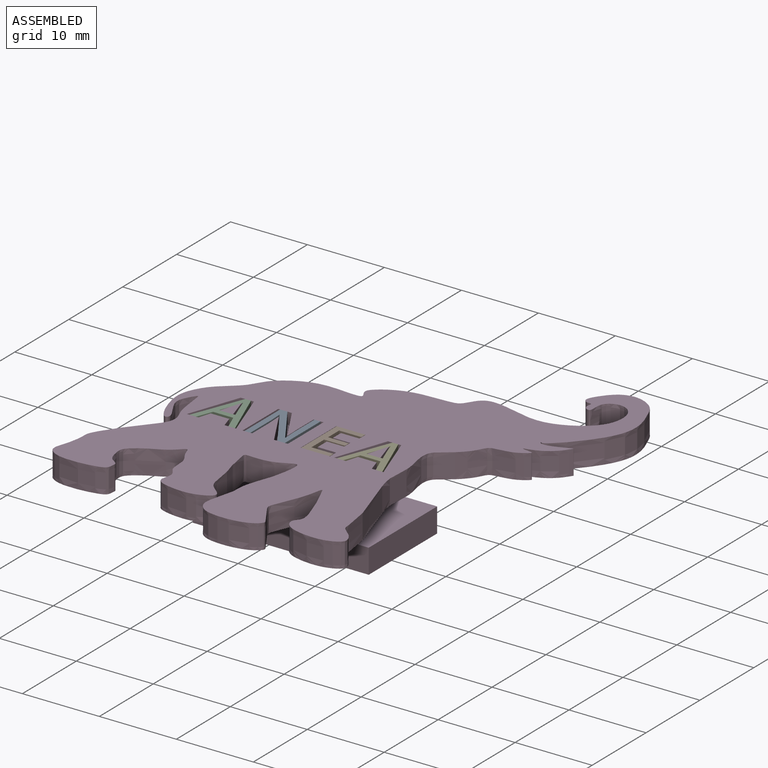
[diagram: assembled view]
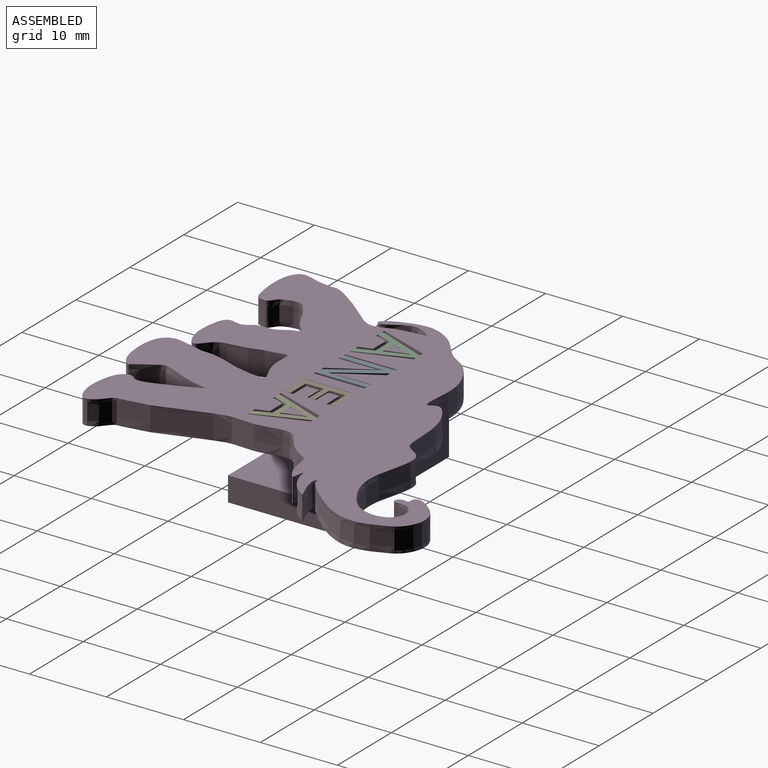
[diagram: assembled view, second angle]
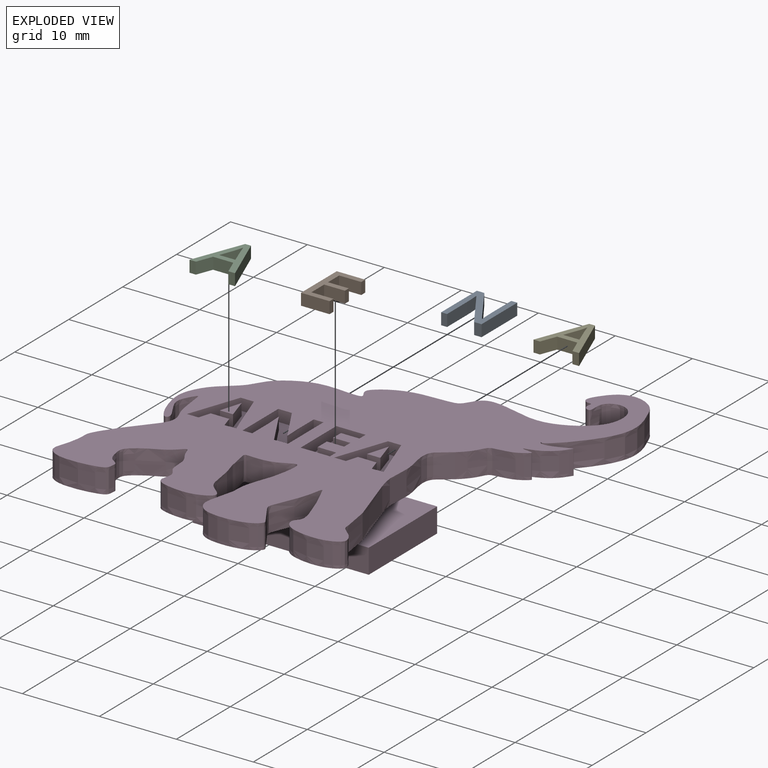
[diagram: exploded view]
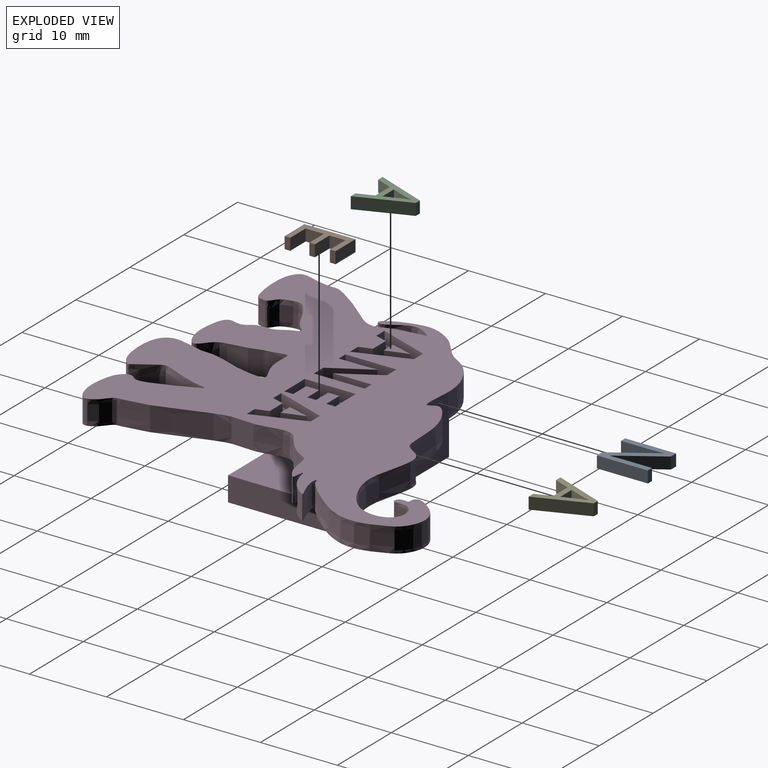
[diagram: exploded view, second angle]
ASSEMBLY  parts=5 mates=4
PART A: 20 faces, bbox 5.2x6.6x1.5 mm
  f0: plane 1.52x0.97mm, normal (0,-1,0), area 1.5mm2, adj f1,f17,f18,f19
  f1: plane 6.62x1.52mm, normal (1,0,0), area 10.1mm2, adj f0,f2,f18,f19
  f2: plane 1.52x0.78mm, normal (0,1,0), area 1.2mm2, adj f1,f3,f18,f19
  f3: plane 3.74x1.52mm, normal (-1,0,0), area 5.7mm2, adj f2,f4,f18,f19
  f4: extruded ~1.52x0.97mm, area 1.5mm2, adj f3,f5,f18,f19
  f5: extruded ~1.52x0.78mm, area 1.2mm2, adj f4,f6,f18,f19
  f6: plane 1.52x0.04mm, normal (0,1,0), area 0.1mm2, adj f5,f7,f18,f19
  f7: plane 1.8x1.52mm, normal (0.84,0.54,0), area 3.3mm2, adj f6,f8,f18,f19
  f8: plane 3.36x2.17mm, normal (0.84,0.54,0), area 6.1mm2, adj f7,f9,f18,f19
  f9: plane 1.52x0.32mm, normal (0.85,0.53,0), area 0.6mm2, adj f8,f10,f18,f19
  f10: plane 1.52x0.97mm, normal (0,1,0), area 1.5mm2, adj f9,f11,f18,f19
  f11: plane 6.62x1.52mm, normal (-1,0,0), area 10.1mm2, adj f10,f12,f18,f19
  f12: plane 1.52x0.77mm, normal (0,-1,0), area 1.2mm2, adj f11,f13,f18,f19
  f13: plane 3.7x1.52mm, normal (1,0,0), area 5.6mm2, adj f12,f14,f18,f19
  f14: extruded ~1.52x1.43mm, area 2.2mm2, adj f13,f15,f18,f19
  f15: plane 1.52x0.37mm, normal (1,0.06,0), area 0.6mm2, adj f14,f16,f18,f19
  f16: plane 1.52x0.04mm, normal (0,-1,0), area 0.1mm2, adj f15,f17,f18,f19
  f17: plane 5.5x3.55mm, normal (-0.84,-0.54,0), area 10mm2, adj f0,f16,f18,f19
  f18: plane 6.62x5.25mm, normal (0,0,1), area 15.6mm2, adj f0,f1,f2,f3,f4,f5,f6,f7
  f19: plane 6.62x5.25mm, normal (0,0,-1), area 15.6mm2, adj f0,f1,f2,f3,f4,f5,f6,f7
PART B: 14 faces, bbox 3.7x6.6x1.5 mm
  f0: plane 3.7x1.52mm, normal (0,-1,0), area 5.6mm2, adj f1,f11,f12,f13
  f1: plane 1.52x0.73mm, normal (1,0,0), area 1.1mm2, adj f0,f2,f12,f13
  f2: plane 2.87x1.52mm, normal (0,1,0), area 4.4mm2, adj f1,f3,f12,f13
  f3: plane 2.37x1.52mm, normal (1,0,0), area 3.6mm2, adj f2,f4,f12,f13
  f4: plane 2.7x1.52mm, normal (0,-1,0), area 4.1mm2, adj f3,f5,f12,f13
  f5: plane 1.52x0.72mm, normal (1,0,0), area 1.1mm2, adj f4,f6,f12,f13
  f6: plane 2.7x1.52mm, normal (0,1,0), area 4.1mm2, adj f5,f7,f12,f13
  f7: plane 2.07x1.52mm, normal (1,0,0), area 3.1mm2, adj f6,f8,f12,f13
  f8: plane 2.87x1.52mm, normal (0,-1,0), area 4.4mm2, adj f7,f9,f12,f13
  f9: plane 1.52x0.73mm, normal (1,0,0), area 1.1mm2, adj f8,f10,f12,f13
  f10: plane 3.7x1.52mm, normal (0,1,0), area 5.6mm2, adj f9,f11,f12,f13
  f11: plane 6.62x1.52mm, normal (-1,0,0), area 10.1mm2, adj f0,f10,f12,f13
  f12: plane 6.62x3.7mm, normal (0,0,1), area 11.7mm2, adj f0,f1,f2,f3,f4,f5,f6,f7
  f13: plane 6.62x3.7mm, normal (0,0,-1), area 11.7mm2, adj f0,f1,f2,f3,f4,f5,f6,f7
PART C: 15 faces, bbox 5.9x6.6x1.5 mm
  f0: plane 2.01x1.52mm, normal (-0.94,-0.35,0), area 3.3mm2, adj f1,f12,f13,f14
  f1: plane 2.1x1.52mm, normal (0,1,0), area 3.2mm2, adj f0,f2,f13,f14
  f2: plane 2.01x1.52mm, normal (0.94,-0.35,0), area 3.3mm2, adj f1,f3,f13,f14
  f3: extruded ~1.52x0.99mm, area 1.6mm2, adj f2,f12,f13,f14
  f4: plane 2.05x1.52mm, normal (-0.93,-0.36,0), area 3.4mm2, adj f5,f11,f13,f14
  f5: plane 1.52x0.86mm, normal (0,-1,0), area 1.3mm2, adj f4,f6,f13,f14
  f6: plane 6.65x2.58mm, normal (0.93,0.36,0), area 10.9mm2, adj f5,f7,f13,f14
  f7: plane 1.52x0.75mm, normal (0,1,0), area 1.1mm2, adj f6,f8,f13,f14
  f8: plane 6.65x2.59mm, normal (-0.93,0.36,0), area 10.9mm2, adj f7,f9,f13,f14
  f9: plane 1.52x0.84mm, normal (0,-1,0), area 1.3mm2, adj f8,f10,f13,f14
  f10: plane 2.05x1.52mm, normal (0.93,-0.36,0), area 3.4mm2, adj f9,f11,f13,f14
  f11: plane 2.63x1.52mm, normal (0,-1,0), area 4mm2, adj f4,f10,f13,f14
  f12: plane 1.52x0.99mm, normal (-0.95,-0.3,0), area 1.6mm2, adj f0,f3,f13,f14
  f13: plane 6.65x5.92mm, normal (0,0,1), area 12.2mm2, adj f0,f1,f2,f3,f4,f5,f6,f7
  f14: plane 6.65x5.92mm, normal (0,0,-1), area 12.2mm2, adj f0,f1,f2,f3,f4,f5,f6,f7
PART D: 66 faces, bbox 48.2x50.4x11.1 mm
  f0: plane 22.86x7.94mm, normal (0,1,0), area 87.7mm2, adj f1,f4,f62,f63,f64,f65
  f1: plane 12.7x3.18mm, normal (1,0,0), area 40.3mm2, adj f0,f61,f63,f64
  f2: plane 50.43x48.2mm, normal (0,0,1), area 971.8mm2, adj f3,f5,f6,f7,f8,f9,f10,f11
  f3: extruded ~49.27x47.53mm, area 913.8mm2, adj f2,f4
  f4: plane 50.43x48.2mm, normal (0,0,-1), area 1018.6mm2, adj f0,f3,f61,f62,f65
  f5: plane 1.78x1.52mm, normal (0,1,0), area 2.7mm2, adj f2,f6,f18,f19
  f6: plane 6.62x1.52mm, normal (-1,0,0), area 10.1mm2, adj f2,f5,f7,f19
  f7: plane 1.52x1.26mm, normal (0,-1,0), area 1.9mm2, adj f2,f6,f8,f19
  f8: plane 3.13x1.52mm, normal (1,0,0), area 4.8mm2, adj f2,f7,f9,f19
  f9: extruded ~1.82x1.52mm, area 2.8mm2, adj f2,f8,f10,f19
  f10: plane 1.52x0.03mm, normal (0,-1,0), area 0mm2, adj f2,f9,f11,f19
  f11: plane 4.96x2.88mm, normal (-0.87,-0.5,0), area 8.7mm2, adj f2,f10,f12,f19
  f12: plane 1.77x1.52mm, normal (0,-1,0), area 2.7mm2, adj f2,f11,f13,f19
  f13: plane 6.62x1.52mm, normal (1,0,0), area 10.1mm2, adj f2,f12,f14,f19
  f14: plane 1.52x1.26mm, normal (0,1,0), area 1.9mm2, adj f2,f13,f15,f19
  f15: plane 3.12x1.52mm, normal (-1,0,0), area 4.7mm2, adj f2,f14,f16,f19
  f16: extruded ~1.89x1.52mm, area 2.9mm2, adj f2,f15,f17,f19
  f17: plane 1.52x0.04mm, normal (0,1,0), area 0.1mm2, adj f2,f16,f18,f19
  f18: plane 5.01x2.88mm, normal (0.87,0.5,0), area 8.8mm2, adj f2,f5,f17,f19
  f19: plane 6.62x5.87mm, normal (0,0,1), area 24.8mm2, adj f5,f6,f7,f8,f9,f10,f11,f12
  f20: plane 3.81x1.52mm, normal (0,1,0), area 5.8mm2, adj f2,f21,f31,f32
  f21: plane 1.52x1.16mm, normal (-1,0,0), area 1.8mm2, adj f2,f20,f22,f32
  f22: plane 2.41x1.52mm, normal (0,-1,0), area 3.7mm2, adj f2,f21,f23,f32
  f23: plane 1.71x1.52mm, normal (-1,0,0), area 2.6mm2, adj f2,f22,f24,f32
  f24: plane 2.24x1.52mm, normal (0,1,0), area 3.4mm2, adj f2,f23,f25,f32
  f25: plane 1.52x1.15mm, normal (-1,0,0), area 1.8mm2, adj f2,f24,f26,f32
  f26: plane 2.24x1.52mm, normal (0,-1,0), area 3.4mm2, adj f2,f25,f27,f32
  f27: plane 1.52x1.45mm, normal (-1,0,0), area 2.2mm2, adj f2,f26,f28,f32
  f28: plane 2.41x1.52mm, normal (0,1,0), area 3.7mm2, adj f2,f27,f29,f32
  f29: plane 1.52x1.15mm, normal (-1,0,0), area 1.8mm2, adj f2,f28,f30,f32
  f30: plane 3.81x1.52mm, normal (0,-1,0), area 5.8mm2, adj f2,f29,f31,f32
  f31: plane 6.62x1.52mm, normal (1,0,0), area 10.1mm2, adj f2,f20,f30,f32
  f32: plane 6.62x3.81mm, normal (0,0,1), area 17.4mm2, adj f20,f21,f22,f23,f24,f25,f26,f27
  f33: extruded ~2.42x1.52mm, area 3.9mm2, adj f34,f44,f45,f59
  f34: plane 1.72x1.52mm, normal (0,-1,0), area 2.6mm2, adj f33,f35,f45,f59
  f35: extruded ~2.87x1.52mm, area 4.6mm2, adj f34,f44,f45,f59
  f36: plane 1.58x1.52mm, normal (0.96,0.29,0), area 2.5mm2, adj f2,f37,f43,f45
  f37: plane 1.52x1.51mm, normal (0,1,0), area 2.3mm2, adj f2,f36,f38,f45
  f38: plane 6.65x2.35mm, normal (-0.94,-0.33,0), area 10.7mm2, adj f2,f37,f39,f45
  f39: plane 1.72x1.52mm, normal (0,-1,0), area 2.6mm2, adj f2,f38,f40,f45
  f40: plane 6.65x2.34mm, normal (0.94,-0.33,0), area 10.7mm2, adj f2,f39,f41,f45
  f41: plane 1.52x1.51mm, normal (0,1,0), area 2.3mm2, adj f2,f40,f42,f45
  f42: plane 1.58x1.52mm, normal (-0.96,0.29,0), area 2.5mm2, adj f2,f41,f43,f45
  f43: plane 2.41x1.52mm, normal (0,1,0), area 3.7mm2, adj f2,f36,f42,f45
  f44: extruded ~1.52x0.44mm, area 0.7mm2, adj f33,f35,f45,f59
  f45: plane 6.65x6.4mm, normal (0,0,1), area 20mm2, adj f33,f34,f35,f36,f37,f38,f39,f40
  f46: extruded ~2.42x1.52mm, area 3.9mm2, adj f47,f57,f58,f60
  f47: plane 1.72x1.52mm, normal (0,-1,0), area 2.6mm2, adj f46,f48,f58,f60
  f48: extruded ~2.87x1.52mm, area 4.6mm2, adj f47,f57,f58,f60
  f49: plane 1.58x1.52mm, normal (0.96,0.29,0), area 2.5mm2, adj f2,f50,f56,f58
  f50: plane 1.52x1.51mm, normal (0,1,0), area 2.3mm2, adj f2,f49,f51,f58
  f51: plane 6.65x2.35mm, normal (-0.94,-0.33,0), area 10.7mm2, adj f2,f50,f52,f58
  f52: plane 1.72x1.52mm, normal (0,-1,0), area 2.6mm2, adj f2,f51,f53,f58
  f53: plane 6.65x2.34mm, normal (0.94,-0.33,0), area 10.7mm2, adj f2,f52,f54,f58
  f54: plane 1.52x1.51mm, normal (0,1,0), area 2.3mm2, adj f2,f53,f55,f58
  f55: plane 1.58x1.52mm, normal (-0.96,0.29,0), area 2.5mm2, adj f2,f54,f56,f58
  f56: plane 2.41x1.52mm, normal (0,1,0), area 3.7mm2, adj f2,f49,f55,f58
  f57: extruded ~1.52x0.44mm, area 0.7mm2, adj f46,f48,f58,f60
  f58: plane 6.65x6.4mm, normal (0,0,1), area 20mm2, adj f46,f47,f48,f49,f50,f51,f52,f53
  f59: plane 2.87x1.72mm, normal (0,0,1), area 2.4mm2, adj f33,f34,f35,f44
  f60: plane 2.87x1.72mm, normal (0,0,1), area 2.4mm2, adj f46,f47,f48,f57
  f61: plane 22.86x7.94mm, normal (0,-1,0), area 87.7mm2, adj f1,f4,f62,f63,f64,f65
  f62: plane 12.7x7.94mm, normal (-1,0,0), area 100.8mm2, adj f0,f4,f61,f63
  f63: plane 22.86x12.7mm, normal (0,0,-1), area 290.3mm2, adj f0,f1,f61,f62
  f64: plane 19.69x12.7mm, normal (0,0,1), area 250mm2, adj f0,f1,f61,f65
  f65: plane 12.7x4.76mm, normal (1,0,0), area 60.5mm2, adj f0,f4,f61,f64
PART E: 15 faces, bbox 5.9x6.6x1.5 mm
  f0: plane 2.01x1.52mm, normal (-0.94,-0.35,0), area 3.3mm2, adj f1,f12,f13,f14
  f1: plane 2.1x1.52mm, normal (0,1,0), area 3.2mm2, adj f0,f2,f13,f14
  f2: plane 2.01x1.52mm, normal (0.94,-0.35,0), area 3.3mm2, adj f1,f3,f13,f14
  f3: extruded ~1.52x0.99mm, area 1.6mm2, adj f2,f12,f13,f14
  f4: plane 2.05x1.52mm, normal (-0.93,-0.36,0), area 3.4mm2, adj f5,f11,f13,f14
  f5: plane 1.52x0.86mm, normal (0,-1,0), area 1.3mm2, adj f4,f6,f13,f14
  f6: plane 6.65x2.58mm, normal (0.93,0.36,0), area 10.9mm2, adj f5,f7,f13,f14
  f7: plane 1.52x0.75mm, normal (0,1,0), area 1.1mm2, adj f6,f8,f13,f14
  f8: plane 6.65x2.59mm, normal (-0.93,0.36,0), area 10.9mm2, adj f7,f9,f13,f14
  f9: plane 1.52x0.84mm, normal (0,-1,0), area 1.3mm2, adj f8,f10,f13,f14
  f10: plane 2.05x1.52mm, normal (0.93,-0.36,0), area 3.4mm2, adj f9,f11,f13,f14
  f11: plane 2.63x1.52mm, normal (0,-1,0), area 4mm2, adj f4,f10,f13,f14
  f12: plane 1.52x0.99mm, normal (-0.95,-0.3,0), area 1.6mm2, adj f0,f3,f13,f14
  f13: plane 6.65x5.92mm, normal (0,0,1), area 12.2mm2, adj f0,f1,f2,f3,f4,f5,f6,f7
  f14: plane 6.65x5.92mm, normal (0,0,-1), area 12.2mm2, adj f0,f1,f2,f3,f4,f5,f6,f7
PLACE A t=(-60.44,26.34,7.29)mm
PLACE B t=(-60.13,26.34,7.29)mm
PLACE C t=(-60.75,26.34,7.29)mm
PLACE D t=(-61.08,26.34,5.64)mm
PLACE E t=(-59.75,26.34,7.29)mm
MATE fastened A.f18 <-> D.f2  axis (0,0,1) through (-53.22,26.34,8.82)mm
MATE fastened D.f2 <-> E.f13  axis (0,0,1) through (-41.19,26.34,8.82)mm
MATE fastened B.f12 <-> D.f2  axis (0,0,1) through (-44.4,26.34,8.82)mm
MATE fastened C.f13 <-> D.f2  axis (0,0,1) through (-60.33,26.34,8.82)mm
